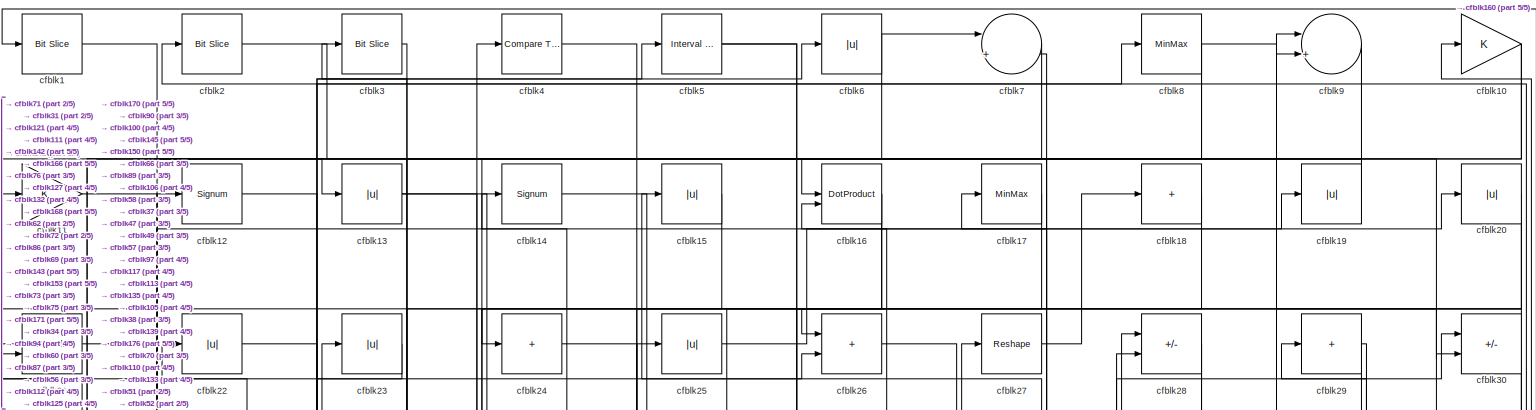
[diagram: root canvas - part 1/5, full width, top band]
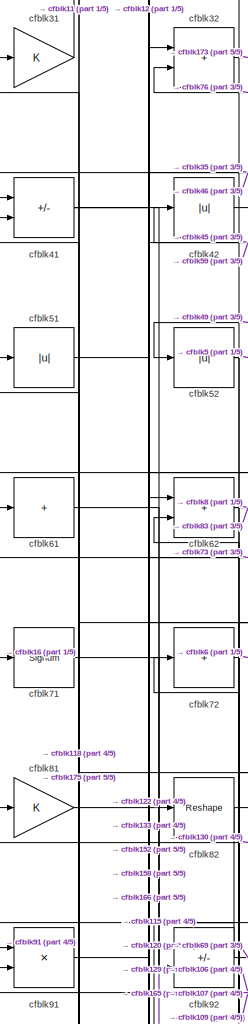
[diagram: root canvas - part 2/5, middle left region]
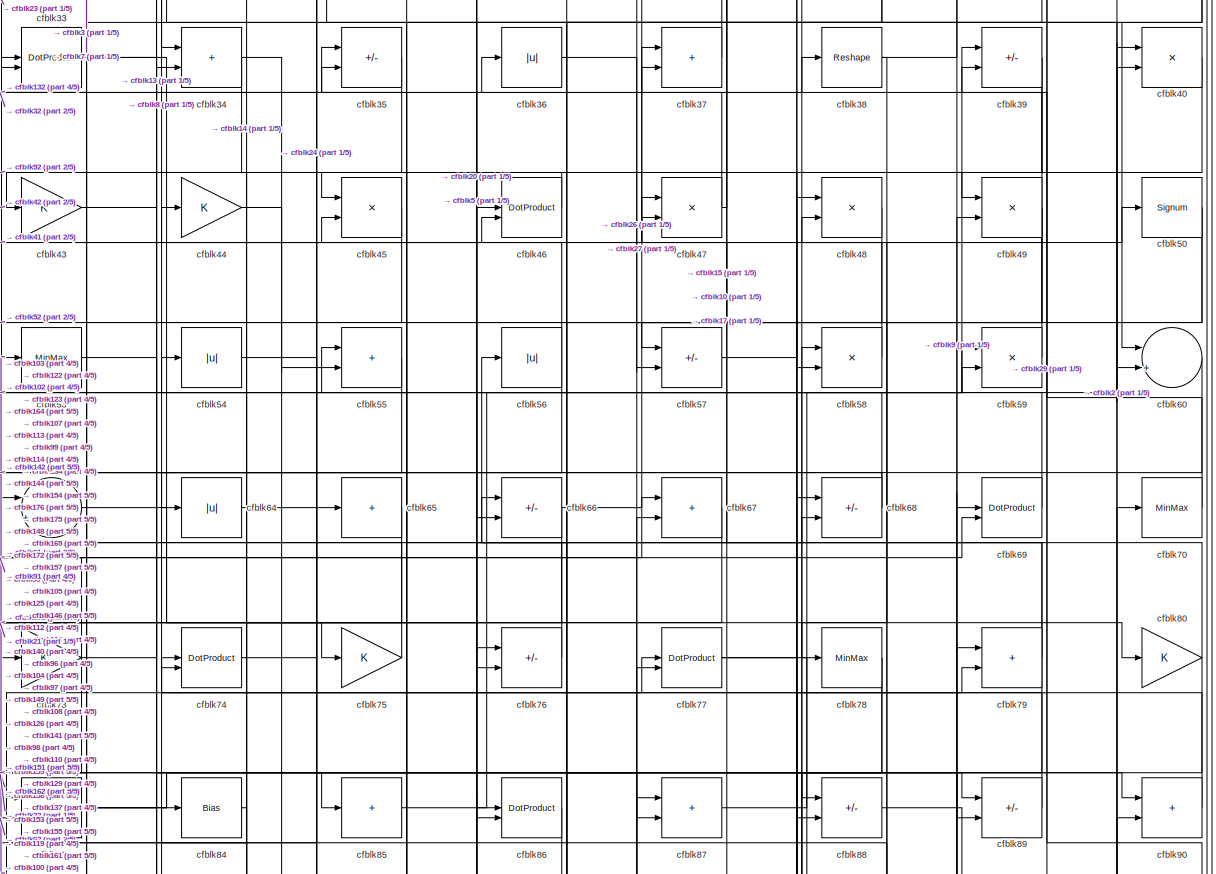
[diagram: root canvas - part 3/5, full width, middle band]
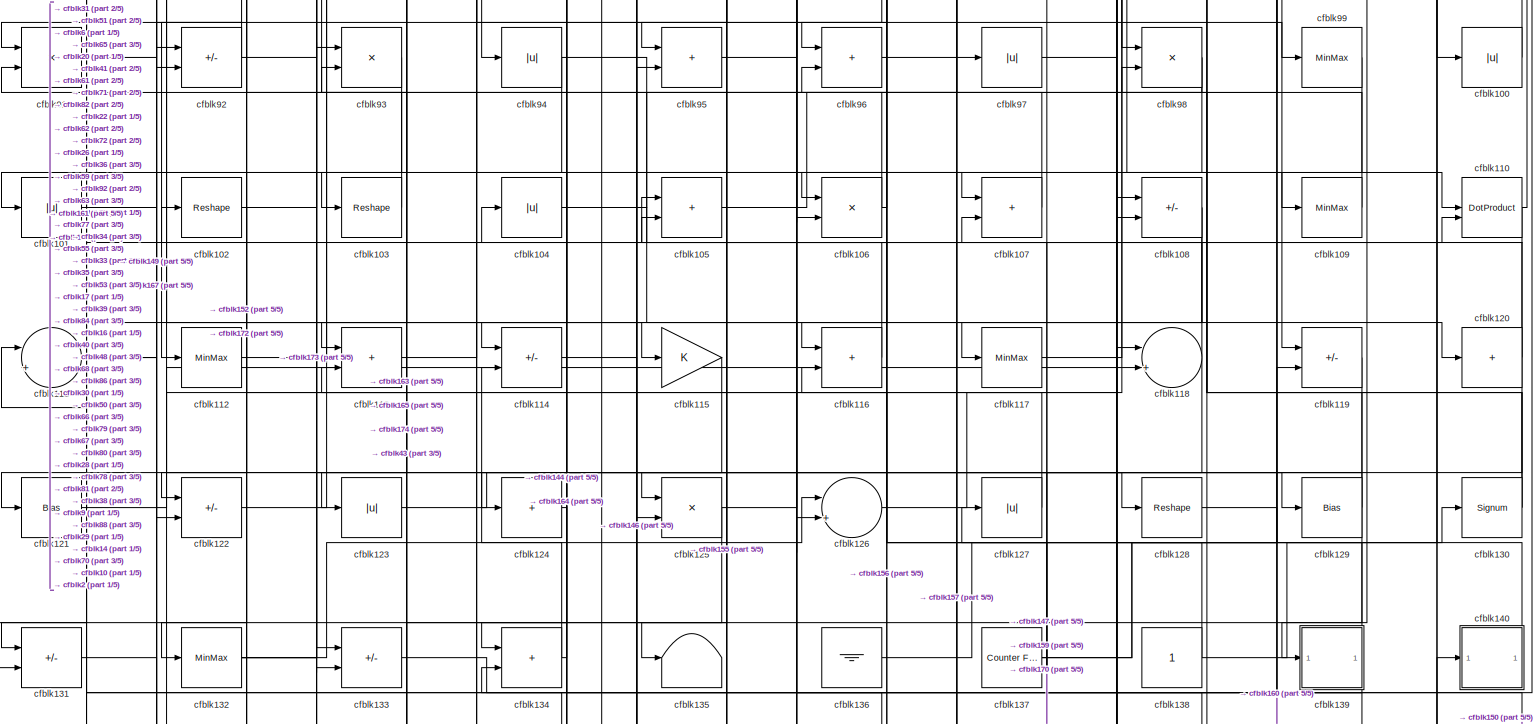
[diagram: root canvas - part 4/5, full width, middle band]
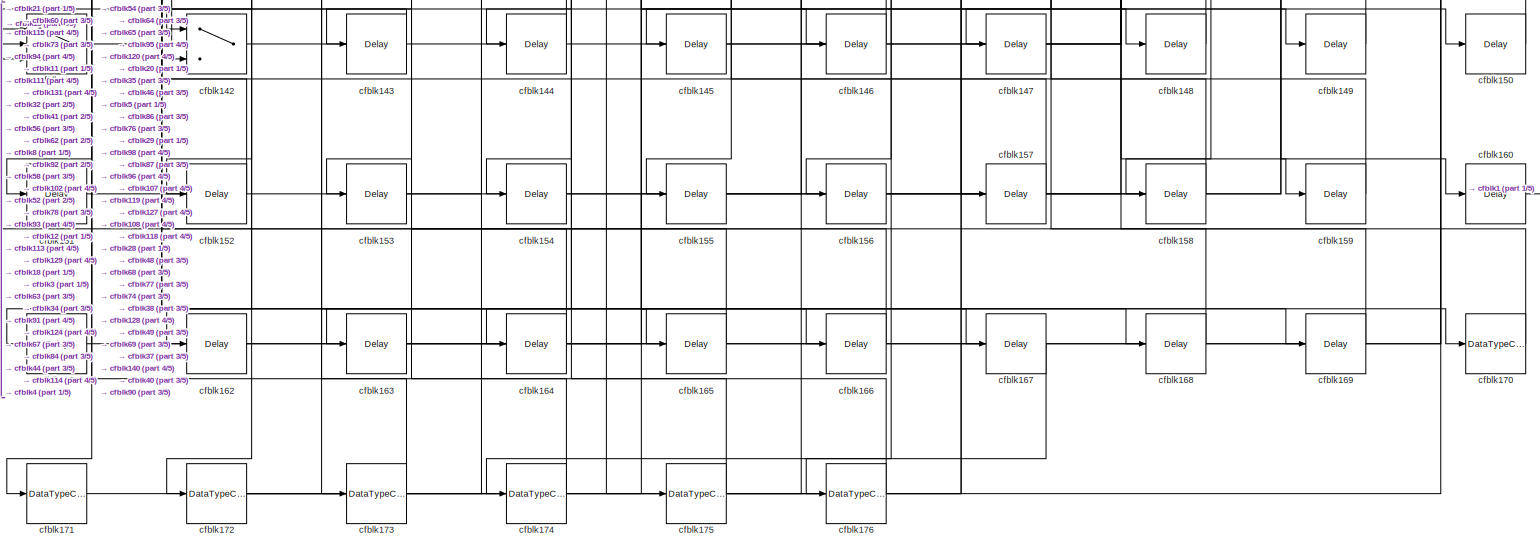
[diagram: root canvas - part 5/5, full width, bottom band]
MODEL slx_798cd50418be
KIND model
CONFIG AbsTol = auto
CONFIG EnableMultiTasking = off
CONFIG FixedStep = auto
CONFIG MaxStep = auto
CONFIG MinStep = auto
CONFIG RelTol = 1e-3
CONFIG SampleTimeConstraint = Unconstrained
CONFIG SolverName = VariableStepAuto
CONFIG StartTime = 0.0
CONFIG StopTime = 10.0
BLOCK [Reference] cfblk1  REF=hdlsllib/Logic and Bit
Operations/Bit Slice
  SourceBlock = hdlsllib/Logic and Bit\nOperations/Bit Slice
  SourceType = Bit Slice
BLOCK [Gain] cfblk10
BLOCK [Abs] cfblk100
  SaturateOnIntegerOverflow = off
BLOCK [Abs] cfblk101
  SaturateOnIntegerOverflow = off
BLOCK [Reshape] cfblk102
BLOCK [Reshape] cfblk103
BLOCK [Abs] cfblk104
  SaturateOnIntegerOverflow = off
BLOCK [Sum] cfblk105
  IconShape = rectangular
BLOCK [Product] cfblk106
  Inputs = */
  RndMeth = Zero
  SaturateOnIntegerOverflow = on
BLOCK [Sum] cfblk107
  IconShape = rectangular
BLOCK [Sum] cfblk108
  IconShape = rectangular
  Inputs = +-
BLOCK [MinMax] cfblk109
BLOCK [Gain] cfblk11
BLOCK [DotProduct] cfblk110
  OutDataTypeStr = Inherit: Inherit via internal rule
BLOCK [Sum] cfblk111
  Inputs = |++
BLOCK [MinMax] cfblk112
BLOCK [Sum] cfblk113
  IconShape = rectangular
BLOCK [Sum] cfblk114
  IconShape = rectangular
  Inputs = +-
BLOCK [Gain] cfblk115
BLOCK [Sum] cfblk116
  IconShape = rectangular
BLOCK [MinMax] cfblk117
BLOCK [Sum] cfblk118
  Inputs = |++
BLOCK [Sum] cfblk119
  IconShape = rectangular
  Inputs = +-
BLOCK [Signum] cfblk12
BLOCK [Sum] cfblk120
  IconShape = rectangular
  Inputs = +
BLOCK [Bias] cfblk121
  Bias = 0.0
  SaturateOnIntegerOverflow = off
BLOCK [Sum] cfblk122
  IconShape = rectangular
  Inputs = +-
BLOCK [Abs] cfblk123
  SaturateOnIntegerOverflow = off
BLOCK [Sum] cfblk124
  IconShape = rectangular
  Inputs = +
BLOCK [Product] cfblk125
  Inputs = */
  RndMeth = Zero
  SaturateOnIntegerOverflow = on
BLOCK [Sum] cfblk126
  Inputs = |++
BLOCK [Abs] cfblk127
  SaturateOnIntegerOverflow = off
BLOCK [Reshape] cfblk128
BLOCK [Bias] cfblk129
  Bias = 0.0
  SaturateOnIntegerOverflow = off
BLOCK [Abs] cfblk13
  SaturateOnIntegerOverflow = off
BLOCK [Signum] cfblk130
BLOCK [Sum] cfblk131
  IconShape = rectangular
  Inputs = +-
BLOCK [MinMax] cfblk132
BLOCK [Sum] cfblk133
  IconShape = rectangular
  Inputs = +-
BLOCK [Sum] cfblk134
  IconShape = rectangular
BLOCK [Terminator] cfblk135
BLOCK [Ground] cfblk136
BLOCK [Reference] cfblk137  REF=hdlsllib/Sources/Counter
Free-Running
  SourceBlock = hdlsllib/Sources/Counter\nFree-Running
  SourceType = Counter Free-Running
BLOCK [Constant] cfblk138
  SampleTime = -1
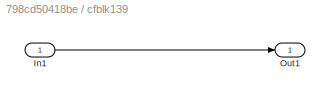
BLOCK [SubSystem] cfblk139
  LibrarySourceBlock = hdlsllib/Ports &\nSubsystems/Subsystem
BLOCK [Inport] cfblk139/In1
BLOCK [Outport] cfblk139/Out1
BLOCK [Signum] cfblk14
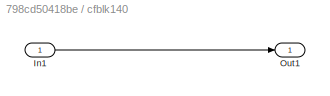
BLOCK [SubSystem] cfblk140
  LibrarySourceBlock = hdlsllib/Ports &\nSubsystems/Subsystem
BLOCK [Inport] cfblk140/In1
BLOCK [Outport] cfblk140/Out1
BLOCK [Switch] cfblk141
  InputSameDT = off
  SaturateOnIntegerOverflow = off
BLOCK [Switch] cfblk142
  InputSameDT = off
  SaturateOnIntegerOverflow = off
BLOCK [Delay] cfblk143
  InputPortMap = u0
  SampleTime = 1
BLOCK [Delay] cfblk144
  InputPortMap = u0
  SampleTime = 1
BLOCK [Delay] cfblk145
  InputPortMap = u0
  SampleTime = 1
BLOCK [Delay] cfblk146
  InputPortMap = u0
  SampleTime = 1
BLOCK [Delay] cfblk147
  InputPortMap = u0
  SampleTime = 1
BLOCK [Delay] cfblk148
  InputPortMap = u0
  SampleTime = 1
BLOCK [Delay] cfblk149
  InputPortMap = u0
  SampleTime = 1
BLOCK [Abs] cfblk15
  SaturateOnIntegerOverflow = off
BLOCK [Delay] cfblk150
  InputPortMap = u0
  SampleTime = 1
BLOCK [Delay] cfblk151
  InputPortMap = u0
  SampleTime = 1
BLOCK [Delay] cfblk152
  InputPortMap = u0
  SampleTime = 1
BLOCK [Delay] cfblk153
  InputPortMap = u0
  SampleTime = 1
BLOCK [Delay] cfblk154
  InputPortMap = u0
  SampleTime = 1
BLOCK [Delay] cfblk155
  InputPortMap = u0
  SampleTime = 1
BLOCK [Delay] cfblk156
  InputPortMap = u0
  SampleTime = 1
BLOCK [Delay] cfblk157
  InputPortMap = u0
  SampleTime = 1
BLOCK [Delay] cfblk158
  InputPortMap = u0
  SampleTime = 1
BLOCK [Delay] cfblk159
  InputPortMap = u0
  SampleTime = 1
BLOCK [DotProduct] cfblk16
  OutDataTypeStr = Inherit: Inherit via internal rule
BLOCK [Delay] cfblk160
  InputPortMap = u0
  SampleTime = 1
BLOCK [Delay] cfblk161
  InputPortMap = u0
  SampleTime = 1
BLOCK [Delay] cfblk162
  InputPortMap = u0
  SampleTime = 1
BLOCK [Delay] cfblk163
  InputPortMap = u0
  SampleTime = 1
BLOCK [Delay] cfblk164
  InputPortMap = u0
  SampleTime = 1
BLOCK [Delay] cfblk165
  InputPortMap = u0
  SampleTime = 1
BLOCK [Delay] cfblk166
  InputPortMap = u0
  SampleTime = 1
BLOCK [Delay] cfblk167
  InputPortMap = u0
  SampleTime = 1
BLOCK [Delay] cfblk168
  InputPortMap = u0
  SampleTime = 1
BLOCK [Delay] cfblk169
  InputPortMap = u0
  SampleTime = 1
BLOCK [MinMax] cfblk17
BLOCK [DataTypeConversion] cfblk170
  OutDataTypeStr = uint8
  RndMeth = Floor
  SaturateOnIntegerOverflow = off
BLOCK [DataTypeConversion] cfblk171
  OutDataTypeStr = uint8
  RndMeth = Floor
  SaturateOnIntegerOverflow = off
BLOCK [DataTypeConversion] cfblk172
  RndMeth = Floor
  SaturateOnIntegerOverflow = off
BLOCK [DataTypeConversion] cfblk173
  OutDataTypeStr = uint8
  RndMeth = Floor
  SaturateOnIntegerOverflow = off
BLOCK [DataTypeConversion] cfblk174
  OutDataTypeStr = uint8
  RndMeth = Floor
  SaturateOnIntegerOverflow = off
BLOCK [DataTypeConversion] cfblk175
  RndMeth = Floor
  SaturateOnIntegerOverflow = off
BLOCK [DataTypeConversion] cfblk176
  OutDataTypeStr = uint8
  RndMeth = Floor
  SaturateOnIntegerOverflow = off
BLOCK [Sum] cfblk18
  IconShape = rectangular
  Inputs = +
BLOCK [Abs] cfblk19
  SaturateOnIntegerOverflow = off
BLOCK [Reference] cfblk2  REF=hdlsllib/Logic and Bit
Operations/Bit Slice
  SourceBlock = hdlsllib/Logic and Bit\nOperations/Bit Slice
  SourceType = Bit Slice
BLOCK [Abs] cfblk20
  SaturateOnIntegerOverflow = off
BLOCK [DotProduct] cfblk21
  OutDataTypeStr = Inherit: Inherit via internal rule
BLOCK [Abs] cfblk22
  SaturateOnIntegerOverflow = off
BLOCK [Abs] cfblk23
  SaturateOnIntegerOverflow = off
BLOCK [Sum] cfblk24
  IconShape = rectangular
  Inputs = +
BLOCK [Abs] cfblk25
  SaturateOnIntegerOverflow = off
BLOCK [Sum] cfblk26
  IconShape = rectangular
BLOCK [Reshape] cfblk27
BLOCK [Sum] cfblk28
  IconShape = rectangular
  Inputs = +-
BLOCK [Sum] cfblk29
  IconShape = rectangular
  Inputs = +
BLOCK [Reference] cfblk3  REF=hdlsllib/Logic and Bit
Operations/Bit Slice
  SourceBlock = hdlsllib/Logic and Bit\nOperations/Bit Slice
  SourceType = Bit Slice
BLOCK [Sum] cfblk30
  IconShape = rectangular
  Inputs = +-
BLOCK [Gain] cfblk31
BLOCK [Sum] cfblk32
  IconShape = rectangular
BLOCK [DotProduct] cfblk33
  OutDataTypeStr = Inherit: Inherit via internal rule
BLOCK [Sum] cfblk34
  IconShape = rectangular
BLOCK [Sum] cfblk35
  IconShape = rectangular
  Inputs = +-
BLOCK [Abs] cfblk36
  SaturateOnIntegerOverflow = off
BLOCK [Sum] cfblk37
  IconShape = rectangular
BLOCK [Reshape] cfblk38
BLOCK [Sum] cfblk39
  IconShape = rectangular
  Inputs = +-
BLOCK [Reference] cfblk4  REF=hdlsllib/Logic and Bit
Operations/Compare
To Constant
  SourceBlock = hdlsllib/Logic and Bit\nOperations/Compare\nTo Constant
  SourceType = Compare To Constant
BLOCK [Product] cfblk40
  Inputs = */
  RndMeth = Zero
  SaturateOnIntegerOverflow = on
BLOCK [Sum] cfblk41
  IconShape = rectangular
  Inputs = +-
BLOCK [Abs] cfblk42
  SaturateOnIntegerOverflow = off
BLOCK [Gain] cfblk43
BLOCK [Gain] cfblk44
BLOCK [Product] cfblk45
  Inputs = */
  RndMeth = Zero
  SaturateOnIntegerOverflow = on
BLOCK [DotProduct] cfblk46
  OutDataTypeStr = Inherit: Inherit via internal rule
BLOCK [Product] cfblk47
  Inputs = */
  RndMeth = Zero
  SaturateOnIntegerOverflow = on
BLOCK [Product] cfblk48
  Inputs = */
  RndMeth = Zero
  SaturateOnIntegerOverflow = on
BLOCK [Product] cfblk49
  Inputs = */
  RndMeth = Zero
  SaturateOnIntegerOverflow = on
BLOCK [Reference] cfblk5  REF=hdlsllib/Logic and Bit
Operations/Interval Test
  SourceBlock = hdlsllib/Logic and Bit\nOperations/Interval Test
  SourceType = Interval Test
BLOCK [Signum] cfblk50
BLOCK [Abs] cfblk51
  SaturateOnIntegerOverflow = off
BLOCK [Abs] cfblk52
  SaturateOnIntegerOverflow = off
BLOCK [MinMax] cfblk53
BLOCK [Abs] cfblk54
  SaturateOnIntegerOverflow = off
BLOCK [Sum] cfblk55
  IconShape = rectangular
BLOCK [Abs] cfblk56
  SaturateOnIntegerOverflow = off
BLOCK [Sum] cfblk57
  IconShape = rectangular
  Inputs = +-
BLOCK [Product] cfblk58
  Inputs = */
  RndMeth = Zero
  SaturateOnIntegerOverflow = on
BLOCK [Product] cfblk59
  Inputs = */
  RndMeth = Zero
  SaturateOnIntegerOverflow = on
BLOCK [Abs] cfblk6
  SaturateOnIntegerOverflow = off
BLOCK [Sum] cfblk60
  Inputs = |++
BLOCK [Sum] cfblk61
  IconShape = rectangular
  Inputs = +
BLOCK [Sum] cfblk62
  IconShape = rectangular
BLOCK [Sum] cfblk63
  Inputs = |++
BLOCK [Abs] cfblk64
  SaturateOnIntegerOverflow = off
BLOCK [Sum] cfblk65
  IconShape = rectangular
  Inputs = +
BLOCK [Sum] cfblk66
  IconShape = rectangular
  Inputs = +-
BLOCK [Sum] cfblk67
  IconShape = rectangular
BLOCK [Sum] cfblk68
  IconShape = rectangular
  Inputs = +-
BLOCK [DotProduct] cfblk69
  OutDataTypeStr = Inherit: Inherit via internal rule
BLOCK [Sum] cfblk7
  Inputs = |++
BLOCK [MinMax] cfblk70
BLOCK [Signum] cfblk71
BLOCK [Sum] cfblk72
  IconShape = rectangular
  Inputs = +
BLOCK [Gain] cfblk73
BLOCK [DotProduct] cfblk74
  OutDataTypeStr = Inherit: Inherit via internal rule
BLOCK [Gain] cfblk75
BLOCK [Sum] cfblk76
  IconShape = rectangular
  Inputs = +-
BLOCK [DotProduct] cfblk77
  OutDataTypeStr = Inherit: Inherit via internal rule
BLOCK [MinMax] cfblk78
BLOCK [Sum] cfblk79
  IconShape = rectangular
BLOCK [MinMax] cfblk8
BLOCK [Gain] cfblk80
BLOCK [Gain] cfblk81
BLOCK [Reshape] cfblk82
BLOCK [Sum] cfblk83
  IconShape = rectangular
  Inputs = +-
BLOCK [Bias] cfblk84
  Bias = 0.0
  SaturateOnIntegerOverflow = off
BLOCK [Sum] cfblk85
  IconShape = rectangular
  Inputs = +
BLOCK [DotProduct] cfblk86
  OutDataTypeStr = Inherit: Inherit via internal rule
BLOCK [Sum] cfblk87
  IconShape = rectangular
BLOCK [Sum] cfblk88
  IconShape = rectangular
  Inputs = +-
BLOCK [Sum] cfblk89
  IconShape = rectangular
  Inputs = +-
BLOCK [Sum] cfblk9
  Inputs = |++
BLOCK [Sum] cfblk90
  IconShape = rectangular
BLOCK [Product] cfblk91
  Inputs = */
  RndMeth = Zero
  SaturateOnIntegerOverflow = on
BLOCK [Sum] cfblk92
  IconShape = rectangular
  Inputs = +-
BLOCK [Product] cfblk93
  Inputs = */
  RndMeth = Zero
  SaturateOnIntegerOverflow = on
BLOCK [Abs] cfblk94
  SaturateOnIntegerOverflow = off
BLOCK [Sum] cfblk95
  IconShape = rectangular
BLOCK [Sum] cfblk96
  IconShape = rectangular
BLOCK [Abs] cfblk97
  SaturateOnIntegerOverflow = off
BLOCK [Product] cfblk98
  Inputs = */
  RndMeth = Zero
  SaturateOnIntegerOverflow = on
BLOCK [MinMax] cfblk99
LINE cfblk100:1 -> cfblk39:2
LINE cfblk101:1 -> cfblk109:1
NET cfblk102:1 -> cfblk122:1, cfblk152:1, cfblk59:2
LINE cfblk103:1 -> cfblk63:1
NET cfblk104:1 -> cfblk110:2, cfblk67:2
NET cfblk105:1 -> cfblk38:1, cfblk9:1
NET cfblk106:1 -> cfblk16:2, cfblk31:1
LINE cfblk107:1 -> cfblk62:2
NET cfblk108:1 -> cfblk117:1, cfblk131:1
LINE cfblk109:1 -> cfblk72:1
NET cfblk10:1 -> cfblk111:2, cfblk57:1
NET cfblk110:1 -> cfblk105:2, cfblk2:1
NET cfblk111:1 -> cfblk167:1, cfblk20:1
LINE cfblk112:1 -> cfblk25:1
LINE cfblk113:1 -> cfblk35:1
LINE cfblk114:1 -> cfblk146:1
LINE cfblk115:1 -> cfblk161:1
LINE cfblk116:1 -> cfblk102:1
LINE cfblk117:1 -> cfblk28:1
NET cfblk118:1 -> cfblk133:2, cfblk51:1
LINE cfblk119:1 -> cfblk147:1
LINE cfblk11:1 -> cfblk166:1
NET cfblk120:1 -> cfblk155:1, cfblk33:1, cfblk98:2
LINE cfblk121:1 -> cfblk118:2
LINE cfblk122:1 -> cfblk77:1
LINE cfblk123:1 -> cfblk128:1
LINE cfblk124:1 -> cfblk164:1
NET cfblk125:1 -> cfblk131:2, cfblk59:1
LINE cfblk126:1 -> cfblk79:2
LINE cfblk127:1 -> cfblk22:1
LINE cfblk128:1 -> cfblk160:1
NET cfblk129:1 -> cfblk124:1, cfblk163:1, cfblk43:1
LINE cfblk12:1 -> cfblk168:1
NET cfblk130:1 -> cfblk105:1, cfblk81:1
LINE cfblk131:1 -> cfblk149:1
NET cfblk132:1 -> cfblk126:1, cfblk26:2, cfblk36:1
LINE cfblk133:1 -> cfblk10:1
NET cfblk134:1 -> cfblk114:2, cfblk84:1
LINE cfblk136:1 -> cfblk119:2
NET cfblk137:1 -> cfblk70:1, cfblk79:1
NET cfblk138:1 -> cfblk104:1, cfblk130:1
LINE cfblk139/In1:1 -> cfblk139/Out1:1
NET cfblk139:1 -> cfblk116:2, cfblk134:2
NET cfblk13:1 -> cfblk60:1, cfblk87:2
LINE cfblk140/In1:1 -> cfblk140/Out1:1
LINE cfblk140:1 -> cfblk66:1
LINE cfblk141:1 -> cfblk58:1
LINE cfblk142:1 -> cfblk48:1
LINE cfblk143:1 -> cfblk141:2
LINE cfblk144:1 -> cfblk91:2
LINE cfblk145:1 -> cfblk28:2
LINE cfblk146:1 -> cfblk76:1
LINE cfblk147:1 -> cfblk108:1
LINE cfblk148:1 -> cfblk74:2
LINE cfblk149:1 -> cfblk37:2
LINE cfblk14:1 -> cfblk100:1
LINE cfblk150:1 -> cfblk111:1
LINE cfblk151:1 -> cfblk34:2
LINE cfblk152:1 -> cfblk62:1
LINE cfblk153:1 -> cfblk49:2
LINE cfblk154:1 -> cfblk46:1
LINE cfblk155:1 -> cfblk69:1
LINE cfblk156:1 -> cfblk118:1
LINE cfblk157:1 -> cfblk35:2
LINE cfblk158:1 -> cfblk32:1
LINE cfblk159:1 -> cfblk107:2
LINE cfblk15:1 -> cfblk24:1
LINE cfblk160:1 -> cfblk1:1
LINE cfblk161:1 -> cfblk40:2
LINE cfblk162:1 -> cfblk90:2
LINE cfblk163:1 -> cfblk95:2
LINE cfblk164:1 -> cfblk63:2
LINE cfblk165:1 -> cfblk113:2
LINE cfblk166:1 -> cfblk92:1
LINE cfblk167:1 -> cfblk174:1
LINE cfblk168:1 -> cfblk21:1
LINE cfblk169:1 -> cfblk68:1
NET cfblk16:1 -> cfblk125:2, cfblk71:1
LINE cfblk170:1 -> cfblk127:1
LINE cfblk171:1 -> cfblk4:1
NET cfblk172:1 -> cfblk140:1, cfblk65:1, cfblk86:1
LINE cfblk173:1 -> cfblk93:1
LINE cfblk174:1 -> cfblk93:2
NET cfblk175:1 -> cfblk41:2, cfblk77:2, cfblk87:1
LINE cfblk176:1 -> cfblk44:1
LINE cfblk17:1 -> cfblk94:1
LINE cfblk18:1 -> cfblk143:1
LINE cfblk19:1 -> cfblk141:1
LINE cfblk1:1 -> cfblk13:1
NET cfblk20:1 -> cfblk145:1, cfblk66:2
LINE cfblk21:1 -> cfblk76:2
LINE cfblk22:1 -> cfblk86:2
LINE cfblk23:1 -> cfblk21:2
LINE cfblk24:1 -> cfblk90:1
LINE cfblk25:1 -> cfblk19:1
LINE cfblk26:1 -> cfblk58:2
LINE cfblk27:1 -> cfblk18:1
NET cfblk28:1 -> cfblk113:1, cfblk135:1
NET cfblk29:1 -> cfblk139:1, cfblk176:1
LINE cfblk2:1 -> cfblk60:2
NET cfblk30:1 -> cfblk106:1, cfblk106:2, cfblk26:1
LINE cfblk31:1 -> cfblk11:1
LINE cfblk32:1 -> cfblk173:1
NET cfblk33:1 -> cfblk75:1, cfblk99:1
NET cfblk34:1 -> cfblk103:1, cfblk55:2
LINE cfblk35:1 -> cfblk92:2
LINE cfblk36:1 -> cfblk97:1
LINE cfblk37:1 -> cfblk15:1
NET cfblk38:1 -> cfblk158:1, cfblk9:2
NET cfblk39:1 -> cfblk114:1, cfblk88:2
LINE cfblk3:1 -> cfblk153:1
LINE cfblk40:1 -> cfblk95:1
NET cfblk41:1 -> cfblk129:1, cfblk165:1, cfblk45:2
LINE cfblk42:1 -> cfblk45:1
LINE cfblk43:1 -> cfblk49:1
LINE cfblk44:1 -> cfblk175:1
LINE cfblk45:1 -> cfblk83:1
LINE cfblk46:1 -> cfblk41:1
NET cfblk47:1 -> cfblk17:1, cfblk33:2
LINE cfblk48:1 -> cfblk125:1
NET cfblk49:1 -> cfblk48:2, cfblk52:1, cfblk57:2, cfblk7:2
LINE cfblk4:1 -> cfblk170:1
NET cfblk50:1 -> cfblk78:1, cfblk96:1
LINE cfblk51:1 -> cfblk12:1
NET cfblk52:1 -> cfblk142:1, cfblk5:1
LINE cfblk53:1 -> cfblk107:1
LINE cfblk54:1 -> cfblk148:1
LINE cfblk55:1 -> cfblk123:1
NET cfblk56:1 -> cfblk142:2, cfblk14:1
LINE cfblk57:1 -> cfblk50:1
LINE cfblk58:1 -> cfblk27:1
LINE cfblk59:1 -> cfblk42:1
NET cfblk5:1 -> cfblk150:1, cfblk89:2
LINE cfblk60:1 -> cfblk141:3
LINE cfblk61:1 -> cfblk115:1
NET cfblk62:1 -> cfblk83:2, cfblk8:1
LINE cfblk63:1 -> cfblk80:1
LINE cfblk64:1 -> cfblk169:1
LINE cfblk65:1 -> cfblk101:1
NET cfblk66:1 -> cfblk132:1, cfblk37:1
LINE cfblk67:1 -> cfblk144:1
NET cfblk68:1 -> cfblk53:1, cfblk64:1
LINE cfblk69:1 -> cfblk23:1
NET cfblk6:1 -> cfblk121:1, cfblk7:1
LINE cfblk70:1 -> cfblk29:1
LINE cfblk71:1 -> cfblk120:1
LINE cfblk72:1 -> cfblk6:1
NET cfblk73:1 -> cfblk151:1, cfblk47:1, cfblk61:1
LINE cfblk74:1 -> cfblk46:2
LINE cfblk75:1 -> cfblk3:1
LINE cfblk76:1 -> cfblk32:2
NET cfblk77:1 -> cfblk110:1, cfblk159:1
NET cfblk78:1 -> cfblk162:1, cfblk98:1
NET cfblk79:1 -> cfblk116:1, cfblk55:1, cfblk56:1
LINE cfblk7:1 -> cfblk73:1
NET cfblk80:1 -> cfblk108:2, cfblk47:2
LINE cfblk81:1 -> cfblk82:1
NET cfblk82:1 -> cfblk122:2, cfblk133:1
NET cfblk83:1 -> cfblk85:1, cfblk88:1, cfblk89:1
LINE cfblk84:1 -> cfblk154:1
LINE cfblk85:1 -> cfblk39:1
LINE cfblk86:1 -> cfblk112:1
LINE cfblk87:1 -> cfblk40:1
LINE cfblk88:1 -> cfblk119:1
LINE cfblk89:1 -> cfblk54:1
NET cfblk8:1 -> cfblk142:3, cfblk30:2, cfblk34:1
LINE cfblk90:1 -> cfblk74:1
LINE cfblk91:1 -> cfblk67:1
NET cfblk92:1 -> cfblk69:2, cfblk91:1
LINE cfblk93:1 -> cfblk172:1
NET cfblk94:1 -> cfblk126:2, cfblk171:1
LINE cfblk95:1 -> cfblk68:2
LINE cfblk96:1 -> cfblk157:1
LINE cfblk97:1 -> cfblk30:1
NET cfblk98:1 -> cfblk156:1, cfblk96:2
LINE cfblk99:1 -> cfblk134:1
LINE cfblk9:1 -> cfblk16:1
note: NET lines group one-source signal fan-out (src -> all destinations, sorted); 1:1 wires keep LINE
